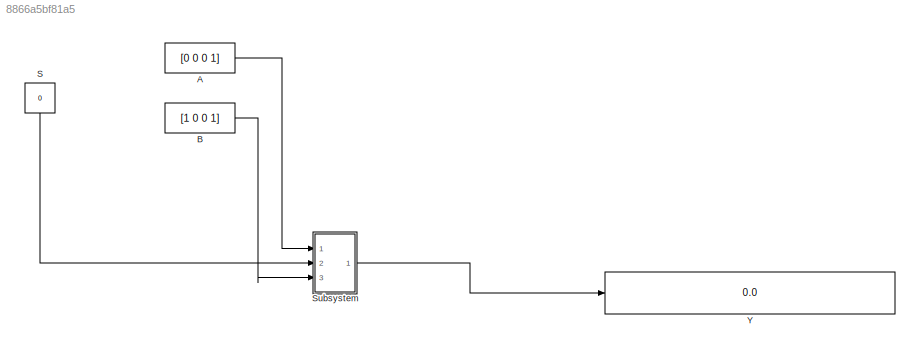
MODEL slx_8866a5bf81a5
KIND model
CONFIG AbsTol = auto
CONFIG EnableMultiTasking = off
CONFIG FixedStep = auto
CONFIG MaxStep = auto
CONFIG MinStep = auto
CONFIG RelTol = 1e-3
CONFIG SampleTimeConstraint = Unconstrained
CONFIG SolverName = VariableStepAuto
CONFIG StartTime = 0.0
CONFIG StopTime = 10.0
BLOCK [Constant] A
  Value = [0 0 0 1]
BLOCK [Constant] B
  Value = [1 0 0 1]
BLOCK [Constant] S
  NameLocation = left
  Value = 0
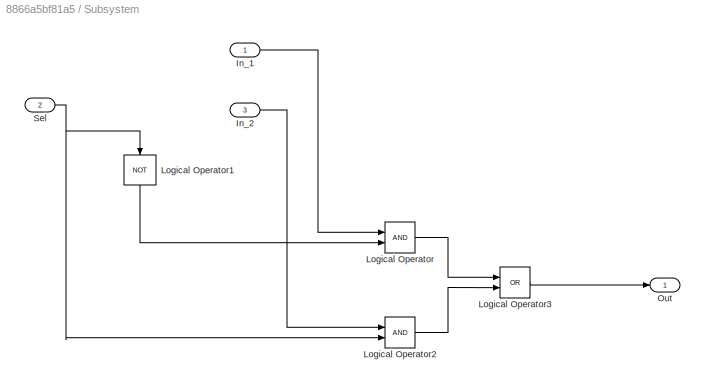
BLOCK [SubSystem] Subsystem
  Ports = [3, 1]
  RequestExecContextInheritance = off
BLOCK [Inport] Subsystem/In_1
BLOCK [Inport] Subsystem/In_2
  Port = 3
BLOCK [Logic] Subsystem/Logical Operator
  AllPortsSameDT = off
  OutDataTypeStr = boolean
  Ports = [2, 1]
BLOCK [Logic] Subsystem/Logical Operator1
  AllPortsSameDT = off
  NameLocation = left
  Operator = NOT
  OutDataTypeStr = boolean
  Ports = [1, 1]
BLOCK [Logic] Subsystem/Logical Operator2
  AllPortsSameDT = off
  OutDataTypeStr = boolean
  Ports = [2, 1]
BLOCK [Logic] Subsystem/Logical Operator3
  AllPortsSameDT = off
  Operator = OR
  OutDataTypeStr = boolean
  Ports = [2, 1]
BLOCK [Outport] Subsystem/Out
BLOCK [Inport] Subsystem/Sel
  Port = 2
BLOCK [Display] Y
  Decimation = 1
  Ports = [1]
LINE A:1 -> Subsystem:1
LINE B:1 -> Subsystem:3
LINE S:1 -> Subsystem:2
LINE Subsystem/In_1:1 -> Subsystem/Logical Operator:1
LINE Subsystem/In_2:1 -> Subsystem/Logical Operator2:1
LINE Subsystem/Logical Operator1:1 -> Subsystem/Logical Operator:2
LINE Subsystem/Logical Operator2:1 -> Subsystem/Logical Operator3:2
LINE Subsystem/Logical Operator3:1 -> Subsystem/Out:1
LINE Subsystem/Logical Operator:1 -> Subsystem/Logical Operator3:1
NET Subsystem/Sel:1 -> Subsystem/Logical Operator1:1, Subsystem/Logical Operator2:2
LINE Subsystem:1 -> Y:1
note: NET lines group one-source signal fan-out (src -> all destinations, sorted); 1:1 wires keep LINE
